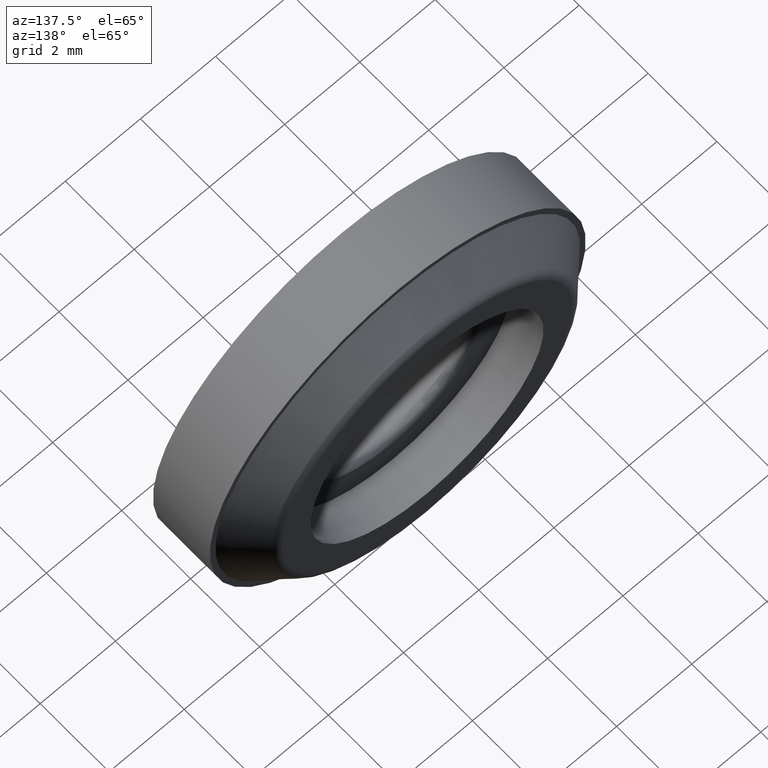
[diagram: clean part render]
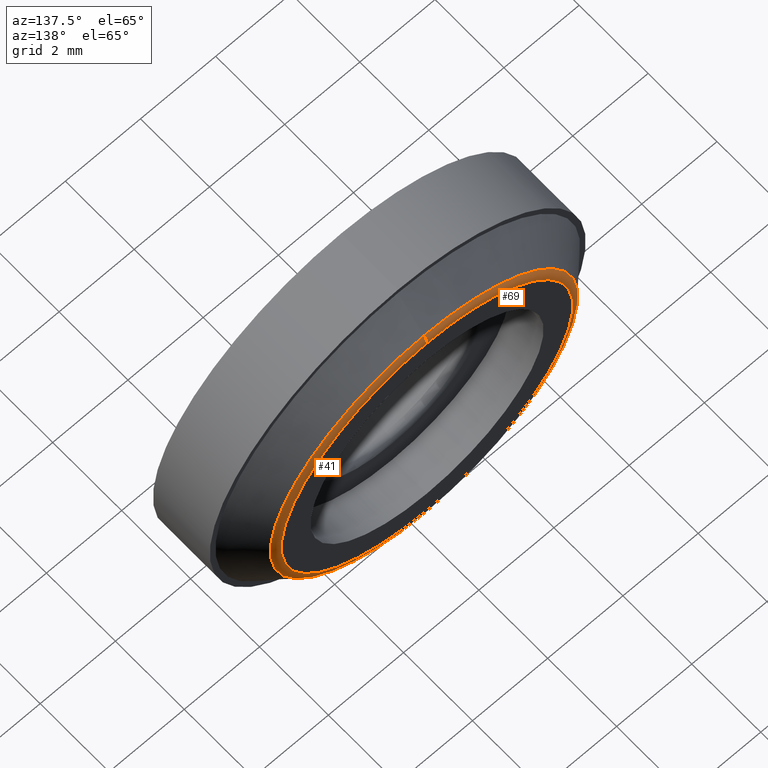
[diagram: same view with one multi-face feature highlighted, each face labeled with its STEP entity id]
A machine part, auxiliary view. The highlighted faces form ONE feature: a constant-radius fillet chain: 2 tangent blend faces with common blend radius 0.3 mm. The faces share edges in the B-rep.
Their STEP definitions:
[1] entity #69 (Torus):
#8 = CIRCLE ( 'NONE', #241, 4.087867965644037800 ) ;
#10 = EDGE_CURVE ( 'NONE', #479, #366, #147, .T. ) ;
#38 = AXIS2_PLACEMENT_3D ( 'NONE', #60, #78, #270 ) ;
#42 = FACE_OUTER_BOUND ( 'NONE', #165, .T. ) ;
#60 = CARTESIAN_POINT ( 'NONE',  ( 0.0000000000000000000, 2.500000000000000000, 0.0000000000000000000 ) ) ;
#69 = ADVANCED_FACE ( 'NONE', ( #42 ), #242, .T. ) ;
#77 = DIRECTION ( 'NONE',  ( -1.000000000000000000, 0.0000000000000000000, 0.0000000000000000000 ) ) ;
#78 = DIRECTION ( 'NONE',  ( 0.0000000000000000000, 1.000000000000000000, 0.0000000000000000000 ) ) ;
#96 = EDGE_CURVE ( 'NONE', #346, #244, #8, .T. ) ;
#109 = CIRCLE ( 'NONE', #440, 0.2999999999999999300 ) ;
#114 = DIRECTION ( 'NONE',  ( 0.0000000000000000000, 1.000000000000000000, 0.0000000000000000000 ) ) ;
#120 = ORIENTED_EDGE ( 'NONE', *, *, #96, .F. ) ;
#135 = CARTESIAN_POINT ( 'NONE',  ( 0.0000000000000000000, 2.412132034355964000, 0.0000000000000000000 ) ) ;
#142 = ORIENTED_EDGE ( 'NONE', *, *, #10, .F. ) ;
#147 = CIRCLE ( 'NONE', #38, 3.875735931288073500 ) ;
#152 = AXIS2_PLACEMENT_3D ( 'NONE', #468, #114, #416 ) ;
#165 = EDGE_LOOP ( 'NONE', ( #240, #120, #279, #142 ) ) ;
#176 = CARTESIAN_POINT ( 'NONE',  ( 5.472865697663817900E-016, 2.412132034355964000, 4.087867965644037800 ) ) ;
#240 = ORIENTED_EDGE ( 'NONE', *, *, #423, .F. ) ;
#241 = AXIS2_PLACEMENT_3D ( 'NONE', #135, #308, #474 ) ;
#242 = TOROIDAL_SURFACE ( 'NONE', #152, 3.875735931288073500, 0.2999999999999999900 ) ;
#244 = VERTEX_POINT ( 'NONE', #487 ) ;
#270 = DIRECTION ( 'NONE',  ( 0.0000000000000000000, 0.0000000000000000000, 1.000000000000000000 ) ) ;
#279 = ORIENTED_EDGE ( 'NONE', *, *, #395, .T. ) ;
#284 = DIRECTION ( 'NONE',  ( 0.0000000000000000000, 0.0000000000000000000, 1.000000000000000000 ) ) ;
#307 = CARTESIAN_POINT ( 'NONE',  ( 4.876301011027650100E-016, 2.500000000000000000, -3.875735931288073500 ) ) ;
#308 = DIRECTION ( 'NONE',  ( 0.0000000000000000000, -1.000000000000000000, 0.0000000000000000000 ) ) ;
#346 = VERTEX_POINT ( 'NONE', #176 ) ;
#366 = VERTEX_POINT ( 'NONE', #367 ) ;
#367 = CARTESIAN_POINT ( 'NONE',  ( 0.0000000000000000000, 2.500000000000000000, 3.875735931288073500 ) ) ;
#372 = CARTESIAN_POINT ( 'NONE',  ( 0.0000000000000000000, 2.200000000000000200, 3.875735931288073500 ) ) ;
#395 = EDGE_CURVE ( 'NONE', #346, #366, #109, .T. ) ;
#414 = DIRECTION ( 'NONE',  ( 1.000000000000000000, -0.0000000000000000000, 1.224646799147353200E-016 ) ) ;
#416 = DIRECTION ( 'NONE',  ( 0.0000000000000000000, 0.0000000000000000000, 1.000000000000000000 ) ) ;
#423 = EDGE_CURVE ( 'NONE', #244, #479, #485, .T. ) ;
#440 = AXIS2_PLACEMENT_3D ( 'NONE', #372, #77, #284 ) ;
#451 = CARTESIAN_POINT ( 'NONE',  ( 4.746407602592325300E-016, 2.200000000000000200, -3.875735931288073500 ) ) ;
#468 = CARTESIAN_POINT ( 'NONE',  ( 0.0000000000000000000, 2.200000000000000200, 0.0000000000000000000 ) ) ;
#474 = DIRECTION ( 'NONE',  ( 0.0000000000000000000, 0.0000000000000000000, -1.000000000000000000 ) ) ;
#475 = AXIS2_PLACEMENT_3D ( 'NONE', #451, #414, #491 ) ;
#479 = VERTEX_POINT ( 'NONE', #307 ) ;
#485 = CIRCLE ( 'NONE', #475, 0.2999999999999999300 ) ;
#487 = CARTESIAN_POINT ( 'NONE',  ( 0.0000000000000000000, 2.412132034355964000, -4.087867965644037800 ) ) ;
#491 = DIRECTION ( 'NONE',  ( 1.224646799147353200E-016, 0.0000000000000000000, -1.000000000000000000 ) ) ;
[2] entity #41 (Torus):
#4 = EDGE_LOOP ( 'NONE', ( #323, #171, #404, #59 ) ) ;
#5 = AXIS2_PLACEMENT_3D ( 'NONE', #187, #157, #212 ) ;
#24 = DIRECTION ( 'NONE',  ( 0.0000000000000000000, 0.0000000000000000000, 1.000000000000000000 ) ) ;
#28 = DIRECTION ( 'NONE',  ( 0.0000000000000000000, -1.000000000000000000, 0.0000000000000000000 ) ) ;
#41 = ADVANCED_FACE ( 'NONE', ( #389 ), #100, .T. ) ;
#59 = ORIENTED_EDGE ( 'NONE', *, *, #395, .F. ) ;
#77 = DIRECTION ( 'NONE',  ( -1.000000000000000000, 0.0000000000000000000, 0.0000000000000000000 ) ) ;
#100 = TOROIDAL_SURFACE ( 'NONE', #177, 3.875735931288073500, 0.2999999999999999900 ) ;
#105 = DIRECTION ( 'NONE',  ( 0.0000000000000000000, 0.0000000000000000000, -1.000000000000000000 ) ) ;
#109 = CIRCLE ( 'NONE', #440, 0.2999999999999999300 ) ;
#117 = DIRECTION ( 'NONE',  ( 0.0000000000000000000, 1.000000000000000000, 0.0000000000000000000 ) ) ;
#148 = CARTESIAN_POINT ( 'NONE',  ( 0.0000000000000000000, 2.412132034355964000, 0.0000000000000000000 ) ) ;
#157 = DIRECTION ( 'NONE',  ( 0.0000000000000000000, 1.000000000000000000, 0.0000000000000000000 ) ) ;
#171 = ORIENTED_EDGE ( 'NONE', *, *, #423, .T. ) ;
#176 = CARTESIAN_POINT ( 'NONE',  ( 5.472865697663817900E-016, 2.412132034355964000, 4.087867965644037800 ) ) ;
#177 = AXIS2_PLACEMENT_3D ( 'NONE', #218, #117, #24 ) ;
#187 = CARTESIAN_POINT ( 'NONE',  ( 0.0000000000000000000, 2.500000000000000000, 0.0000000000000000000 ) ) ;
#205 = AXIS2_PLACEMENT_3D ( 'NONE', #148, #28, #105 ) ;
#212 = DIRECTION ( 'NONE',  ( 0.0000000000000000000, 0.0000000000000000000, 1.000000000000000000 ) ) ;
#218 = CARTESIAN_POINT ( 'NONE',  ( 0.0000000000000000000, 2.200000000000000200, 0.0000000000000000000 ) ) ;
#244 = VERTEX_POINT ( 'NONE', #487 ) ;
#275 = CIRCLE ( 'NONE', #5, 3.875735931288073500 ) ;
#283 = EDGE_CURVE ( 'NONE', #244, #346, #417, .T. ) ;
#284 = DIRECTION ( 'NONE',  ( 0.0000000000000000000, 0.0000000000000000000, 1.000000000000000000 ) ) ;
#307 = CARTESIAN_POINT ( 'NONE',  ( 4.876301011027650100E-016, 2.500000000000000000, -3.875735931288073500 ) ) ;
#323 = ORIENTED_EDGE ( 'NONE', *, *, #283, .F. ) ;
#346 = VERTEX_POINT ( 'NONE', #176 ) ;
#366 = VERTEX_POINT ( 'NONE', #367 ) ;
#367 = CARTESIAN_POINT ( 'NONE',  ( 0.0000000000000000000, 2.500000000000000000, 3.875735931288073500 ) ) ;
#372 = CARTESIAN_POINT ( 'NONE',  ( 0.0000000000000000000, 2.200000000000000200, 3.875735931288073500 ) ) ;
#389 = FACE_OUTER_BOUND ( 'NONE', #4, .T. ) ;
#395 = EDGE_CURVE ( 'NONE', #346, #366, #109, .T. ) ;
#404 = ORIENTED_EDGE ( 'NONE', *, *, #433, .F. ) ;
#414 = DIRECTION ( 'NONE',  ( 1.000000000000000000, -0.0000000000000000000, 1.224646799147353200E-016 ) ) ;
#417 = CIRCLE ( 'NONE', #205, 4.087867965644037800 ) ;
#423 = EDGE_CURVE ( 'NONE', #244, #479, #485, .T. ) ;
#433 = EDGE_CURVE ( 'NONE', #366, #479, #275, .T. ) ;
#440 = AXIS2_PLACEMENT_3D ( 'NONE', #372, #77, #284 ) ;
#451 = CARTESIAN_POINT ( 'NONE',  ( 4.746407602592325300E-016, 2.200000000000000200, -3.875735931288073500 ) ) ;
#475 = AXIS2_PLACEMENT_3D ( 'NONE', #451, #414, #491 ) ;
#479 = VERTEX_POINT ( 'NONE', #307 ) ;
#485 = CIRCLE ( 'NONE', #475, 0.2999999999999999300 ) ;
#487 = CARTESIAN_POINT ( 'NONE',  ( 0.0000000000000000000, 2.412132034355964000, -4.087867965644037800 ) ) ;
#491 = DIRECTION ( 'NONE',  ( 1.224646799147353200E-016, 0.0000000000000000000, -1.000000000000000000 ) ) ;